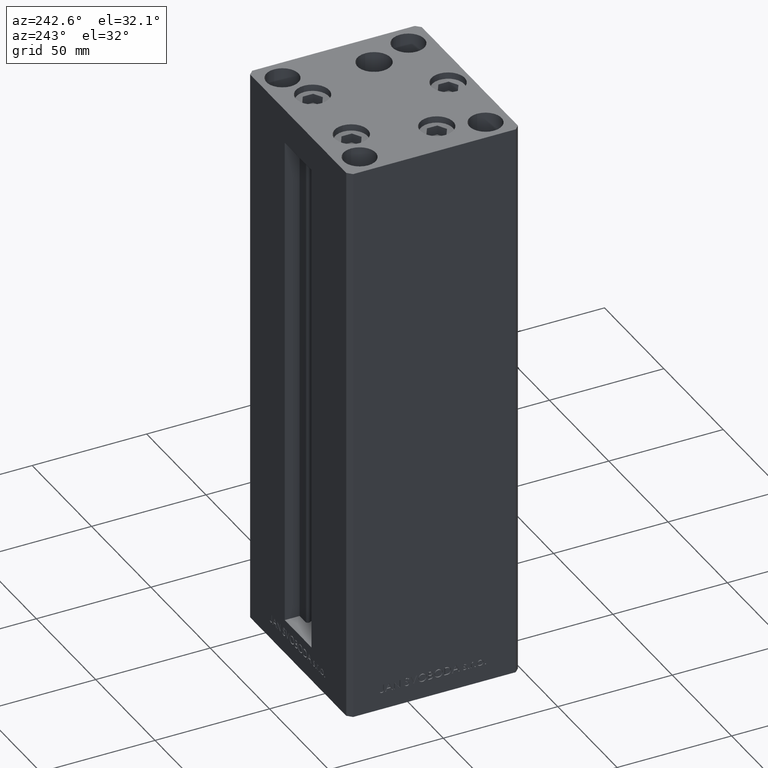
[diagram: clean part render]
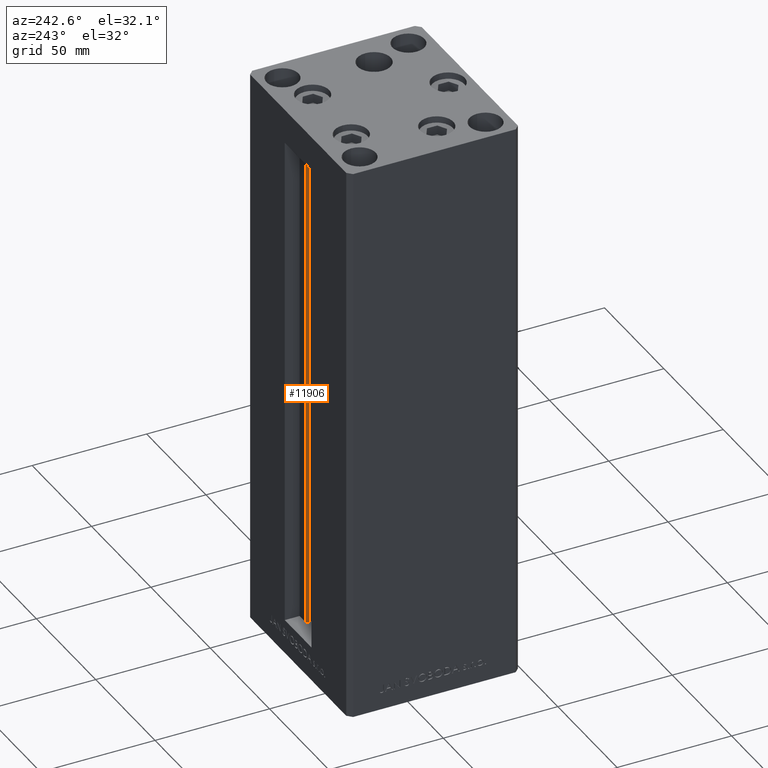
[diagram: same view with one face highlighted and labeled with its STEP entity id]
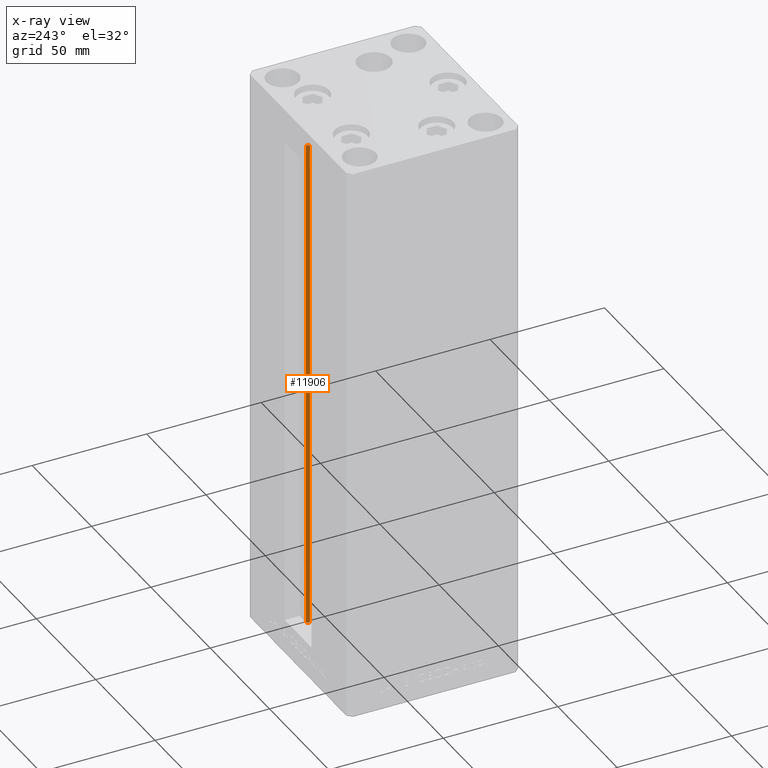
[diagram: x-ray of the same camera — body ghosted, the highlighted face saturated]
A machine part, auxiliary view. The second image highlights one B-rep face of the part: STEP entity #11906.
The next image is the same camera in x-ray: the body ghosted, the highlighted face saturated — about 0% of this face is hidden behind the body in this view.
In plain terms, the highlighted cylindrical surface (edge-blend (fillet) strip) has radius 0.9333 mm, axis along (0, 0, 1).
Its self-contained STEP definition (entity closure, byte-faithful):
#879 = CIRCLE ( 'NONE', #7968, 0.9333333333340015914 ) ;
#1463 = EDGE_CURVE ( 'NONE', #32961, #32522, #25543, .T. ) ;
#2411 = DIRECTION ( 'NONE',  ( -0.000000000000000000, -0.000000000000000000, 1.000000000000000000 ) ) ;
#2666 = AXIS2_PLACEMENT_3D ( 'NONE', #9711, #20842, #6249 ) ;
#2909 = VECTOR ( 'NONE', #2411, 1000.000000000000000 ) ;
#4335 = CYLINDRICAL_SURFACE ( 'NONE', #27499, 0.9333333333340015914 ) ;
#4931 = CARTESIAN_POINT ( 'NONE',  ( 5.375042956467944499, 29.59999999999899245, 218.5000000000000000 ) ) ;
#6249 = DIRECTION ( 'NONE',  ( 1.000000000000000000, 0.000000000000000000, 0.000000000000000000 ) ) ;
#7968 = AXIS2_PLACEMENT_3D ( 'NONE', #32544, #47663, #13725 ) ;
#8656 = CARTESIAN_POINT ( 'NONE',  ( 5.375042956467943611, 29.59999999999899245, 0.000000000000000000 ) ) ;
#9460 = ORIENTED_EDGE ( 'NONE', *, *, #9822, .T. ) ;
#9711 = CARTESIAN_POINT ( 'NONE',  ( 6.183333333333999704, 30.06666666666599141, 218.5000000000000000 ) ) ;
#9822 = EDGE_CURVE ( 'NONE', #11720, #32961, #30706, .T. ) ;
#11720 = VERTEX_POINT ( 'NONE', #13244 ) ;
#11906 = ADVANCED_FACE ( 'NONE', ( #26608 ), #4335, .T. ) ;
#12590 = CARTESIAN_POINT ( 'NONE',  ( 6.183333333333999704, 30.99999999999999289, 0.000000000000000000 ) ) ;
#13244 = CARTESIAN_POINT ( 'NONE',  ( 5.375042956467943611, 29.59999999999899245, 0.000000000000000000 ) ) ;
#13725 = DIRECTION ( 'NONE',  ( 1.000000000000000000, 0.000000000000000000, 0.000000000000000000 ) ) ;
#17978 = LINE ( 'NONE', #36322, #2909 ) ;
#19554 = DIRECTION ( 'NONE',  ( -0.000000000000000000, -0.000000000000000000, 1.000000000000000000 ) ) ;
#19684 = EDGE_LOOP ( 'NONE', ( #24958, #20175, #9460, #30772 ) ) ;
#20175 = ORIENTED_EDGE ( 'NONE', *, *, #30181, .F. ) ;
#20842 = DIRECTION ( 'NONE',  ( 0.000000000000000000, 0.000000000000000000, -1.000000000000000000 ) ) ;
#21543 = CARTESIAN_POINT ( 'NONE',  ( 6.183333333333999704, 30.99999999999999289, 218.5000000000000000 ) ) ;
#22649 = CARTESIAN_POINT ( 'NONE',  ( 6.183333333333999704, 30.06666666666599141, 0.000000000000000000 ) ) ;
#24958 = ORIENTED_EDGE ( 'NONE', *, *, #48792, .F. ) ;
#25543 = CIRCLE ( 'NONE', #2666, 0.9333333333340015914 ) ;
#26608 = FACE_OUTER_BOUND ( 'NONE', #19684, .T. ) ;
#27499 = AXIS2_PLACEMENT_3D ( 'NONE', #22649, #38505, #48655 ) ;
#30181 = EDGE_CURVE ( 'NONE', #11720, #38177, #879, .T. ) ;
#30706 = LINE ( 'NONE', #8656, #43278 ) ;
#30772 = ORIENTED_EDGE ( 'NONE', *, *, #1463, .T. ) ;
#32522 = VERTEX_POINT ( 'NONE', #21543 ) ;
#32544 = CARTESIAN_POINT ( 'NONE',  ( 6.183333333333999704, 30.06666666666599141, 0.000000000000000000 ) ) ;
#32961 = VERTEX_POINT ( 'NONE', #4931 ) ;
#36322 = CARTESIAN_POINT ( 'NONE',  ( 6.183333333333999704, 30.99999999999999289, 0.000000000000000000 ) ) ;
#38177 = VERTEX_POINT ( 'NONE', #12590 ) ;
#38505 = DIRECTION ( 'NONE',  ( -0.000000000000000000, -0.000000000000000000, 1.000000000000000000 ) ) ;
#43278 = VECTOR ( 'NONE', #19554, 1000.000000000000000 ) ;
#47663 = DIRECTION ( 'NONE',  ( -0.000000000000000000, -0.000000000000000000, -1.000000000000000000 ) ) ;
#48655 = DIRECTION ( 'NONE',  ( 1.000000000000000000, 0.000000000000000000, 0.000000000000000000 ) ) ;
#48792 = EDGE_CURVE ( 'NONE', #38177, #32522, #17978, .T. ) ;